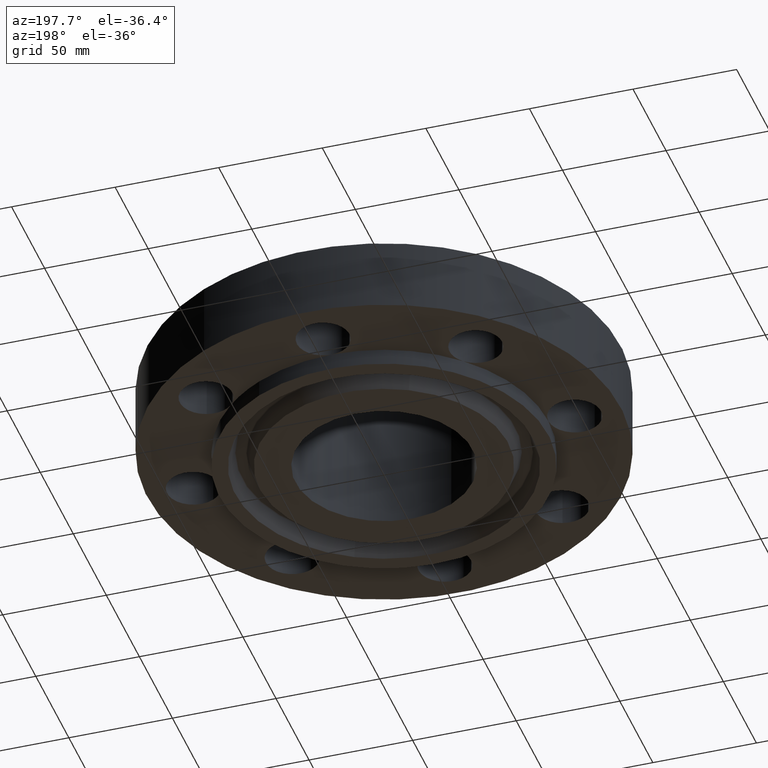
[diagram: clean part render]
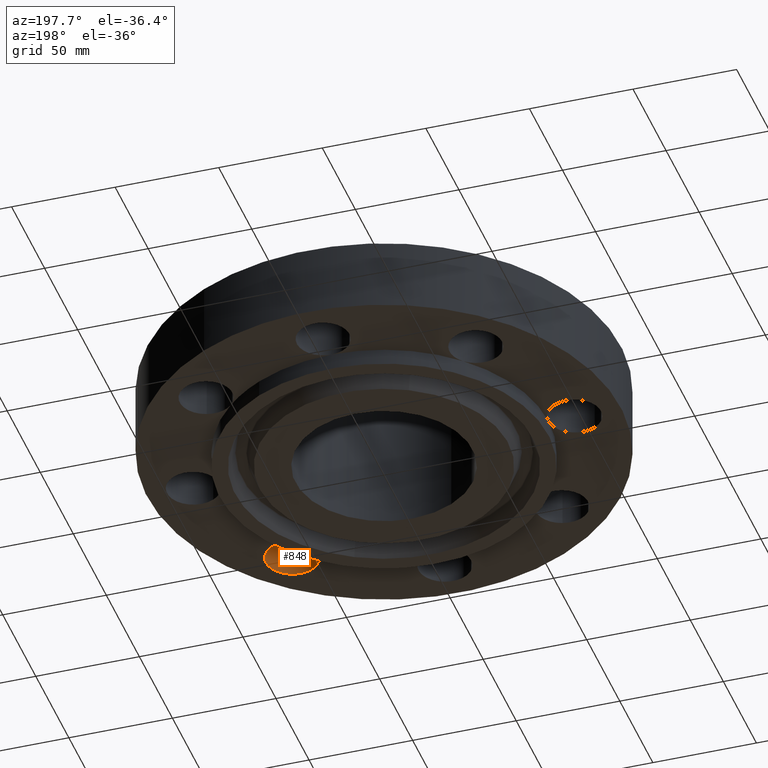
[diagram: same view with one face highlighted and labeled with its STEP entity id]
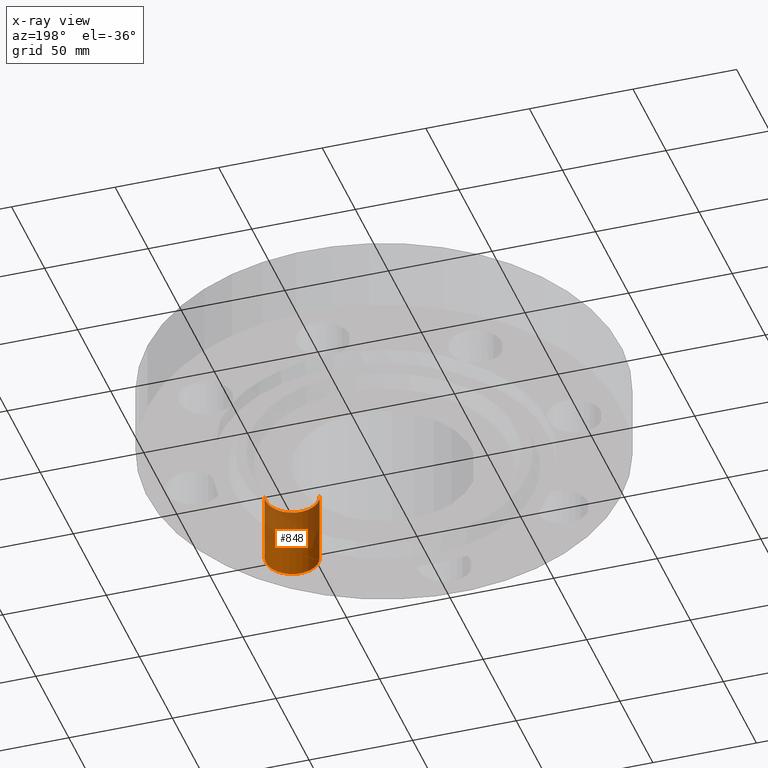
[diagram: x-ray of the same camera — body ghosted, the highlighted face saturated]
A machine part, auxiliary view. The second image highlights one B-rep face of the part: STEP entity #848.
The next image is the same camera in x-ray: the body ghosted, the highlighted face saturated — about 61% of this face is hidden behind the body in this view.
In plain terms, the highlighted cylindrical surface (edge-blend (fillet) strip) has radius 12.7 mm, axis along (-0, 0, -1).
Its self-contained STEP definition (entity closure, byte-faithful):
#683=AXIS2_PLACEMENT_3D('Circle Axis2P3D',#681,#682,$) ;
#821=AXIS2_PLACEMENT_3D('Cylinder Axis2P3D',#818,#819,#820) ;
#839=AXIS2_PLACEMENT_3D('Circle Axis2P3D',#837,#838,$) ;
#678=CARTESIAN_POINT('Vertex',(2.08348726682,-2.70403184738,0.)) ;
#681=CARTESIAN_POINT('Axis2P3D Location',(2.56326208181,-2.56326208181,0.)) ;
#685=CARTESIAN_POINT('Vertex',(3.04303689681,-2.42249231624,0.)) ;
#818=CARTESIAN_POINT('Axis2P3D Location',(2.56326208181,-2.56326208181,1.37606299213)) ;
#823=CARTESIAN_POINT('Line Origine',(3.04303689681,-2.42249231624,0.690000000003)) ;
#827=CARTESIAN_POINT('Vertex',(3.04303689681,-2.42249231624,1.38000000001)) ;
#830=CARTESIAN_POINT('Line Origine',(2.08348726682,-2.70403184738,0.690000000003)) ;
#834=CARTESIAN_POINT('Vertex',(2.08348726682,-2.70403184738,1.38000000001)) ;
#837=CARTESIAN_POINT('Axis2P3D Location',(2.56326208181,-2.56326208181,1.38000000001)) ;
#682=DIRECTION('Axis2P3D Direction',(0.,0.,-0.0393700787402)) ;
#819=DIRECTION('Axis2P3D Direction',(-0.,0.,-0.0393700787402)) ;
#820=DIRECTION('Axis2P3D XDirection',(-0.0377775444876,-0.0110842335096,0.)) ;
#824=DIRECTION('Vector Direction',(0.,0.,-0.0393700787402)) ;
#831=DIRECTION('Vector Direction',(0.,0.,-0.0393700787402)) ;
#838=DIRECTION('Axis2P3D Direction',(-0.,0.,-0.0393700787402)) ;
#825=VECTOR('Line Direction',#824,0.0393700787402) ;
#832=VECTOR('Line Direction',#831,0.0393700787402) ;
#843=ORIENTED_EDGE('',*,*,#829,.F.) ;
#844=ORIENTED_EDGE('',*,*,#687,.T.) ;
#845=ORIENTED_EDGE('',*,*,#836,.T.) ;
#846=ORIENTED_EDGE('',*,*,#841,.F.) ;
#848=ADVANCED_FACE('PartBody',(#847),#822,.F.) ;
#684=CIRCLE('generated circle',#683,0.500000000002) ;
#840=CIRCLE('generated circle',#839,0.500000000002) ;
#822=CYLINDRICAL_SURFACE('generated cylinder',#821,0.500000000002) ;
#687=EDGE_CURVE('',#686,#679,#684,.T.) ;
#829=EDGE_CURVE('',#686,#828,#826,.F.) ;
#836=EDGE_CURVE('',#679,#835,#833,.F.) ;
#841=EDGE_CURVE('',#828,#835,#840,.T.) ;
#842=EDGE_LOOP('',(#843,#844,#845,#846)) ;
#847=FACE_OUTER_BOUND('',#842,.T.) ;
#826=LINE('Line',#823,#825) ;
#833=LINE('Line',#830,#832) ;
#679=VERTEX_POINT('',#678) ;
#686=VERTEX_POINT('',#685) ;
#828=VERTEX_POINT('',#827) ;
#835=VERTEX_POINT('',#834) ;